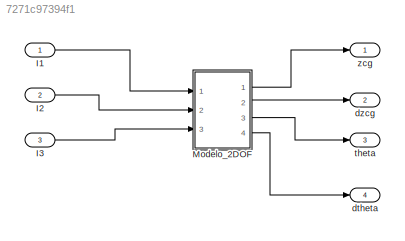
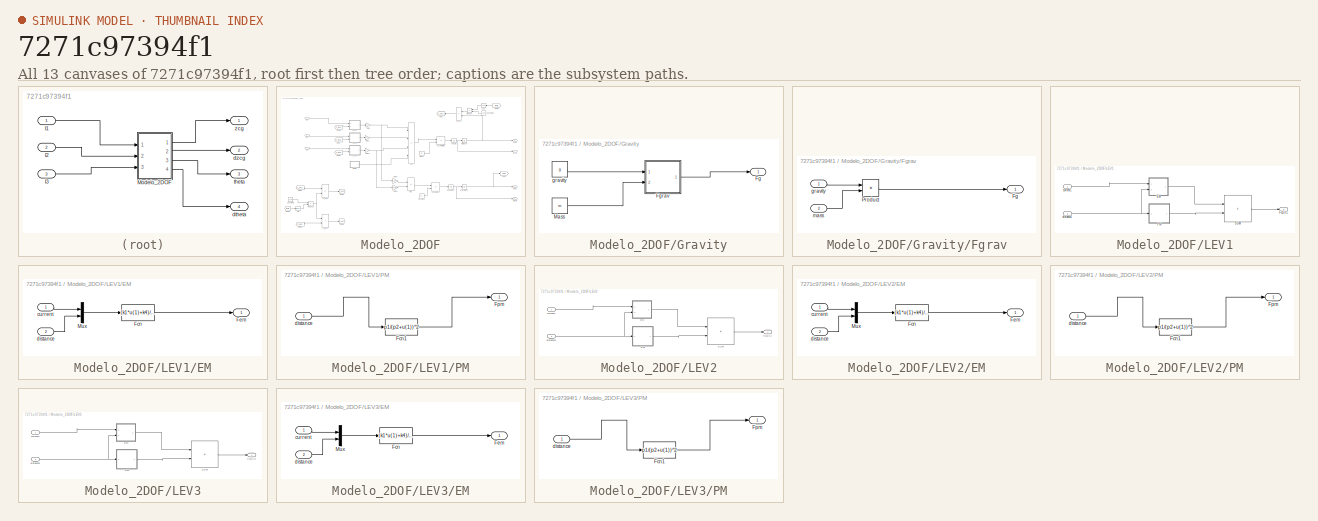
[diagram: thumbnail index - all 13 canvases of the model, root first then tree order]
MODEL slx_7271c97394f1
KIND model
CONFIG AbsTol = auto
CONFIG EnableMultiTasking = off
CONFIG FixedStep = T
CONFIG MaxStep = auto
CONFIG MinStep = auto
CONFIG RelTol = 1e-3
CONFIG SampleTimeConstraint = Unconstrained
CONFIG SolverName = VariableStepAuto
CONFIG StartTime = 0.0
CONFIG StopTime = 5
BLOCK [Inport] I1
BLOCK [Inport] I2
  Port = 2
BLOCK [Inport] I3
  Port = 3
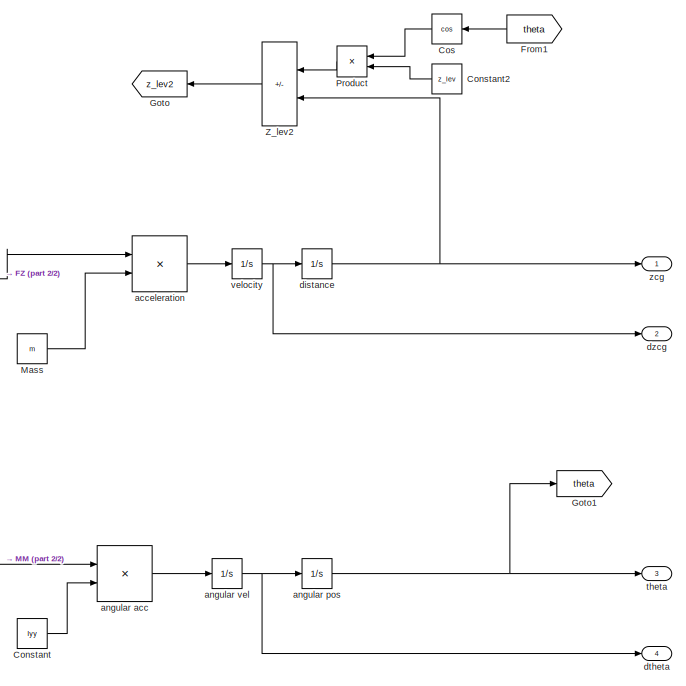
[diagram: Modelo_2DOF - part 1/2, right side, full height]
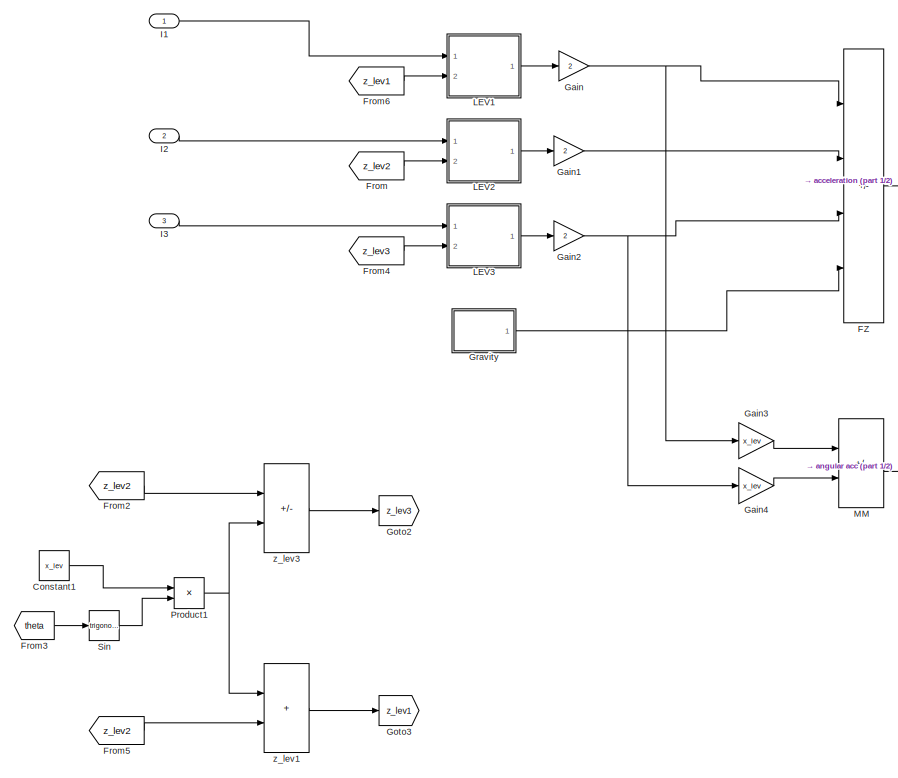
[diagram: Modelo_2DOF - part 2/2, left side, full height]
BLOCK [SubSystem] Modelo_2DOF
  Ports = [3, 4]
  RequestExecContextInheritance = off
BLOCK [Constant] Modelo_2DOF/Constant
  Value = Iyy
BLOCK [Constant] Modelo_2DOF/Constant1
  Value = x_lev
BLOCK [Constant] Modelo_2DOF/Constant2
  NameLocation = top
  Value = z_lev
BLOCK [Trigonometry] Modelo_2DOF/Cos
  NameLocation = top
  Operator = cos
  Ports = [1, 1]
BLOCK [Sum] Modelo_2DOF/FZ
  IconShape = rectangular
  Inputs = ---+
  Ports = [4, 1]
BLOCK [From] Modelo_2DOF/From
  GotoTag = z_lev2
BLOCK [From] Modelo_2DOF/From1
  GotoTag = theta
  NameLocation = top
BLOCK [From] Modelo_2DOF/From2
  GotoTag = z_lev2
BLOCK [From] Modelo_2DOF/From3
  GotoTag = theta
BLOCK [From] Modelo_2DOF/From4
  GotoTag = z_lev3
BLOCK [From] Modelo_2DOF/From5
  GotoTag = z_lev2
BLOCK [From] Modelo_2DOF/From6
  GotoTag = z_lev1
BLOCK [Gain] Modelo_2DOF/Gain
  Gain = 2
BLOCK [Gain] Modelo_2DOF/Gain1
  Gain = 2
BLOCK [Gain] Modelo_2DOF/Gain2
  Gain = 2
BLOCK [Gain] Modelo_2DOF/Gain3
  Gain = x_lev
BLOCK [Gain] Modelo_2DOF/Gain4
  Gain = x_lev
BLOCK [Goto] Modelo_2DOF/Goto
  GotoTag = z_lev2
  NameLocation = top
BLOCK [Goto] Modelo_2DOF/Goto1
  GotoTag = theta
BLOCK [Goto] Modelo_2DOF/Goto2
  GotoTag = z_lev3
BLOCK [Goto] Modelo_2DOF/Goto3
  GotoTag = z_lev1
BLOCK [SubSystem] Modelo_2DOF/Gravity
  Ports = [0, 1]
  RequestExecContextInheritance = off
BLOCK [Outport] Modelo_2DOF/Gravity/Fg
BLOCK [SubSystem] Modelo_2DOF/Gravity/Fgrav
  Ports = [2, 1]
  RequestExecContextInheritance = off
BLOCK [Outport] Modelo_2DOF/Gravity/Fgrav/Fg
  VectorParamsAs1DForOutWhenUnconnected = off
BLOCK [Product] Modelo_2DOF/Gravity/Fgrav/Product
  Ports = [2, 1]
BLOCK [Inport] Modelo_2DOF/Gravity/Fgrav/gravity
BLOCK [Inport] Modelo_2DOF/Gravity/Fgrav/mass
  Port = 2
BLOCK [Constant] Modelo_2DOF/Gravity/Mass
  Value = m
BLOCK [Constant] Modelo_2DOF/Gravity/gravity
  Value = g
BLOCK [Inport] Modelo_2DOF/I1
BLOCK [Inport] Modelo_2DOF/I2
  Port = 2
BLOCK [Inport] Modelo_2DOF/I3
  Port = 3
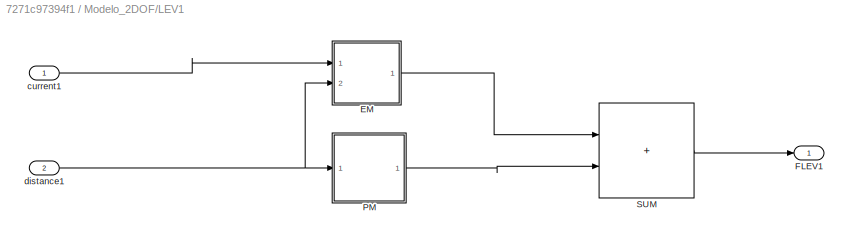
BLOCK [SubSystem] Modelo_2DOF/LEV1
  Ports = [2, 1]
  RequestExecContextInheritance = off
BLOCK [SubSystem] Modelo_2DOF/LEV1/EM
  Ports = [2, 1]
  RequestExecContextInheritance = off
BLOCK [Fcn] Modelo_2DOF/LEV1/EM/Fcn
  Expr = (k1*u(1)+k4)/(u(2)*k3-k2)^2
BLOCK [Outport] Modelo_2DOF/LEV1/EM/Fem
  VectorParamsAs1DForOutWhenUnconnected = off
BLOCK [Mux] Modelo_2DOF/LEV1/EM/Mux
  DisplayOption = bar
  Inputs = 2
  Ports = [2, 1]
BLOCK [Inport] Modelo_2DOF/LEV1/EM/current
BLOCK [Inport] Modelo_2DOF/LEV1/EM/distance
  Port = 2
BLOCK [Outport] Modelo_2DOF/LEV1/FLEV1
  VectorParamsAs1DForOutWhenUnconnected = off
BLOCK [SubSystem] Modelo_2DOF/LEV1/PM
  Ports = [1, 1]
  RequestExecContextInheritance = off
BLOCK [Fcn] Modelo_2DOF/LEV1/PM/Fcn1
  Expr = p1/(p2+u(1))^2
BLOCK [Outport] Modelo_2DOF/LEV1/PM/Fpm
  VectorParamsAs1DForOutWhenUnconnected = off
BLOCK [Inport] Modelo_2DOF/LEV1/PM/distance
BLOCK [Sum] Modelo_2DOF/LEV1/SUM
  IconShape = rectangular
  Ports = [2, 1]
BLOCK [Inport] Modelo_2DOF/LEV1/current1
BLOCK [Inport] Modelo_2DOF/LEV1/distance1
  Port = 2
BLOCK [SubSystem] Modelo_2DOF/LEV2
  Ports = [2, 1]
  RequestExecContextInheritance = off
BLOCK [SubSystem] Modelo_2DOF/LEV2/EM
  Ports = [2, 1]
  RequestExecContextInheritance = off
BLOCK [Fcn] Modelo_2DOF/LEV2/EM/Fcn
  Expr = (k1*u(1)+k4)/(u(2)*k3-k2)^2
BLOCK [Outport] Modelo_2DOF/LEV2/EM/Fem
  VectorParamsAs1DForOutWhenUnconnected = off
BLOCK [Mux] Modelo_2DOF/LEV2/EM/Mux
  DisplayOption = bar
  Inputs = 2
  Ports = [2, 1]
BLOCK [Inport] Modelo_2DOF/LEV2/EM/current
BLOCK [Inport] Modelo_2DOF/LEV2/EM/distance
  Port = 2
BLOCK [Outport] Modelo_2DOF/LEV2/FLEV2
  VectorParamsAs1DForOutWhenUnconnected = off
BLOCK [SubSystem] Modelo_2DOF/LEV2/PM
  Ports = [1, 1]
  RequestExecContextInheritance = off
BLOCK [Fcn] Modelo_2DOF/LEV2/PM/Fcn1
  Expr = p1/(p2+u(1))^2
BLOCK [Outport] Modelo_2DOF/LEV2/PM/Fpm
  VectorParamsAs1DForOutWhenUnconnected = off
BLOCK [Inport] Modelo_2DOF/LEV2/PM/distance
BLOCK [Sum] Modelo_2DOF/LEV2/SUM
  IconShape = rectangular
  Ports = [2, 1]
BLOCK [Inport] Modelo_2DOF/LEV2/current2
BLOCK [Inport] Modelo_2DOF/LEV2/distance2
  Port = 2
BLOCK [SubSystem] Modelo_2DOF/LEV3
  Ports = [2, 1]
  RequestExecContextInheritance = off
BLOCK [SubSystem] Modelo_2DOF/LEV3/EM
  Ports = [2, 1]
  RequestExecContextInheritance = off
BLOCK [Fcn] Modelo_2DOF/LEV3/EM/Fcn
  Expr = (k1*u(1)+k4)/(u(2)*k3-k2)^2
BLOCK [Outport] Modelo_2DOF/LEV3/EM/Fem
  VectorParamsAs1DForOutWhenUnconnected = off
BLOCK [Mux] Modelo_2DOF/LEV3/EM/Mux
  DisplayOption = bar
  Inputs = 2
  Ports = [2, 1]
BLOCK [Inport] Modelo_2DOF/LEV3/EM/current
BLOCK [Inport] Modelo_2DOF/LEV3/EM/distance
  Port = 2
BLOCK [Outport] Modelo_2DOF/LEV3/FLEV3
  VectorParamsAs1DForOutWhenUnconnected = off
BLOCK [SubSystem] Modelo_2DOF/LEV3/PM
  Ports = [1, 1]
  RequestExecContextInheritance = off
BLOCK [Fcn] Modelo_2DOF/LEV3/PM/Fcn1
  Expr = p1/(p2+u(1))^2
BLOCK [Outport] Modelo_2DOF/LEV3/PM/Fpm
  VectorParamsAs1DForOutWhenUnconnected = off
BLOCK [Inport] Modelo_2DOF/LEV3/PM/distance
BLOCK [Sum] Modelo_2DOF/LEV3/SUM
  IconShape = rectangular
  Ports = [2, 1]
BLOCK [Inport] Modelo_2DOF/LEV3/current3
BLOCK [Inport] Modelo_2DOF/LEV3/distance3
  Port = 2
BLOCK [Sum] Modelo_2DOF/MM
  IconShape = rectangular
  Inputs = +-
  Ports = [2, 1]
BLOCK [Constant] Modelo_2DOF/Mass
  Value = m
BLOCK [Product] Modelo_2DOF/Product
  NameLocation = top
  Ports = [2, 1]
BLOCK [Product] Modelo_2DOF/Product1
  Ports = [2, 1]
BLOCK [Trigonometry] Modelo_2DOF/Sin
  Ports = [1, 1]
BLOCK [Sum] Modelo_2DOF/Z_lev2
  IconShape = rectangular
  Inputs = -+
  NameLocation = top
  Ports = [2, 1]
BLOCK [Product] Modelo_2DOF/acceleration
  Inputs = */
  Ports = [2, 1]
BLOCK [Product] Modelo_2DOF/angular acc
  Inputs = */
  Ports = [2, 1]
BLOCK [Integrator] Modelo_2DOF/angular pos
  InitialCondition = theta0
  Ports = [1, 1]
BLOCK [Integrator] Modelo_2DOF/angular vel
  Ports = [1, 1]
BLOCK [Integrator] Modelo_2DOF/distance
  InitialCondition = z_ini
  Ports = [1, 1]
BLOCK [Outport] Modelo_2DOF/dtheta
  Port = 4
  VectorParamsAs1DForOutWhenUnconnected = off
BLOCK [Outport] Modelo_2DOF/dzcg
  Port = 2
  VectorParamsAs1DForOutWhenUnconnected = off
BLOCK [Outport] Modelo_2DOF/theta
  Port = 3
  VectorParamsAs1DForOutWhenUnconnected = off
BLOCK [Integrator] Modelo_2DOF/velocity
  Ports = [1, 1]
BLOCK [Sum] Modelo_2DOF/z_lev1
  IconShape = rectangular
  Ports = [2, 1]
BLOCK [Sum] Modelo_2DOF/z_lev3
  IconShape = rectangular
  Inputs = +-
  Ports = [2, 1]
BLOCK [Outport] Modelo_2DOF/zcg
  VectorParamsAs1DForOutWhenUnconnected = off
BLOCK [Outport] dtheta
  Port = 4
  VectorParamsAs1DForOutWhenUnconnected = off
BLOCK [Outport] dzcg
  Port = 2
  VectorParamsAs1DForOutWhenUnconnected = off
BLOCK [Outport] theta
  Port = 3
  VectorParamsAs1DForOutWhenUnconnected = off
BLOCK [Outport] zcg
  VectorParamsAs1DForOutWhenUnconnected = off
LINE I1:1 -> Modelo_2DOF:1
LINE I2:1 -> Modelo_2DOF:2
LINE I3:1 -> Modelo_2DOF:3
LINE Modelo_2DOF/Constant1:1 -> Modelo_2DOF/Product1:1
LINE Modelo_2DOF/Constant2:1 -> Modelo_2DOF/Product:2
LINE Modelo_2DOF/Constant:1 -> Modelo_2DOF/angular acc:2
LINE Modelo_2DOF/Cos:1 -> Modelo_2DOF/Product:1
LINE Modelo_2DOF/FZ:1 -> Modelo_2DOF/acceleration:1
LINE Modelo_2DOF/From1:1 -> Modelo_2DOF/Cos:1
LINE Modelo_2DOF/From2:1 -> Modelo_2DOF/z_lev3:1
LINE Modelo_2DOF/From3:1 -> Modelo_2DOF/Sin:1
LINE Modelo_2DOF/From4:1 -> Modelo_2DOF/LEV3:2
LINE Modelo_2DOF/From5:1 -> Modelo_2DOF/z_lev1:2
LINE Modelo_2DOF/From6:1 -> Modelo_2DOF/LEV1:2
LINE Modelo_2DOF/From:1 -> Modelo_2DOF/LEV2:2
LINE Modelo_2DOF/Gain1:1 -> Modelo_2DOF/FZ:2
NET Modelo_2DOF/Gain2:1 -> Modelo_2DOF/FZ:3, Modelo_2DOF/Gain4:1
LINE Modelo_2DOF/Gain3:1 -> Modelo_2DOF/MM:1
LINE Modelo_2DOF/Gain4:1 -> Modelo_2DOF/MM:2
NET Modelo_2DOF/Gain:1 -> Modelo_2DOF/FZ:1, Modelo_2DOF/Gain3:1
LINE Modelo_2DOF/Gravity/Fgrav/Product:1 -> Modelo_2DOF/Gravity/Fgrav/Fg:1
LINE Modelo_2DOF/Gravity/Fgrav/gravity:1 -> Modelo_2DOF/Gravity/Fgrav/Product:1
LINE Modelo_2DOF/Gravity/Fgrav/mass:1 -> Modelo_2DOF/Gravity/Fgrav/Product:2
LINE Modelo_2DOF/Gravity/Fgrav:1 -> Modelo_2DOF/Gravity/Fg:1
LINE Modelo_2DOF/Gravity/Mass:1 -> Modelo_2DOF/Gravity/Fgrav:2
LINE Modelo_2DOF/Gravity/gravity:1 -> Modelo_2DOF/Gravity/Fgrav:1
LINE Modelo_2DOF/Gravity:1 -> Modelo_2DOF/FZ:4
LINE Modelo_2DOF/I1:1 -> Modelo_2DOF/LEV1:1
LINE Modelo_2DOF/I2:1 -> Modelo_2DOF/LEV2:1
LINE Modelo_2DOF/I3:1 -> Modelo_2DOF/LEV3:1
LINE Modelo_2DOF/LEV1/EM/Fcn:1 -> Modelo_2DOF/LEV1/EM/Fem:1
LINE Modelo_2DOF/LEV1/EM/Mux:1 -> Modelo_2DOF/LEV1/EM/Fcn:1
LINE Modelo_2DOF/LEV1/EM/current:1 -> Modelo_2DOF/LEV1/EM/Mux:1
LINE Modelo_2DOF/LEV1/EM/distance:1 -> Modelo_2DOF/LEV1/EM/Mux:2
LINE Modelo_2DOF/LEV1/EM:1 -> Modelo_2DOF/LEV1/SUM:1
LINE Modelo_2DOF/LEV1/PM/Fcn1:1 -> Modelo_2DOF/LEV1/PM/Fpm:1
LINE Modelo_2DOF/LEV1/PM/distance:1 -> Modelo_2DOF/LEV1/PM/Fcn1:1
LINE Modelo_2DOF/LEV1/PM:1 -> Modelo_2DOF/LEV1/SUM:2
LINE Modelo_2DOF/LEV1/SUM:1 -> Modelo_2DOF/LEV1/FLEV1:1
LINE Modelo_2DOF/LEV1/current1:1 -> Modelo_2DOF/LEV1/EM:1
NET Modelo_2DOF/LEV1/distance1:1 -> Modelo_2DOF/LEV1/EM:2, Modelo_2DOF/LEV1/PM:1
LINE Modelo_2DOF/LEV1:1 -> Modelo_2DOF/Gain:1
LINE Modelo_2DOF/LEV2/EM/Fcn:1 -> Modelo_2DOF/LEV2/EM/Fem:1
LINE Modelo_2DOF/LEV2/EM/Mux:1 -> Modelo_2DOF/LEV2/EM/Fcn:1
LINE Modelo_2DOF/LEV2/EM/current:1 -> Modelo_2DOF/LEV2/EM/Mux:1
LINE Modelo_2DOF/LEV2/EM/distance:1 -> Modelo_2DOF/LEV2/EM/Mux:2
LINE Modelo_2DOF/LEV2/EM:1 -> Modelo_2DOF/LEV2/SUM:1
LINE Modelo_2DOF/LEV2/PM/Fcn1:1 -> Modelo_2DOF/LEV2/PM/Fpm:1
LINE Modelo_2DOF/LEV2/PM/distance:1 -> Modelo_2DOF/LEV2/PM/Fcn1:1
LINE Modelo_2DOF/LEV2/PM:1 -> Modelo_2DOF/LEV2/SUM:2
LINE Modelo_2DOF/LEV2/SUM:1 -> Modelo_2DOF/LEV2/FLEV2:1
LINE Modelo_2DOF/LEV2/current2:1 -> Modelo_2DOF/LEV2/EM:1
NET Modelo_2DOF/LEV2/distance2:1 -> Modelo_2DOF/LEV2/EM:2, Modelo_2DOF/LEV2/PM:1
LINE Modelo_2DOF/LEV2:1 -> Modelo_2DOF/Gain1:1
LINE Modelo_2DOF/LEV3/EM/Fcn:1 -> Modelo_2DOF/LEV3/EM/Fem:1
LINE Modelo_2DOF/LEV3/EM/Mux:1 -> Modelo_2DOF/LEV3/EM/Fcn:1
LINE Modelo_2DOF/LEV3/EM/current:1 -> Modelo_2DOF/LEV3/EM/Mux:1
LINE Modelo_2DOF/LEV3/EM/distance:1 -> Modelo_2DOF/LEV3/EM/Mux:2
LINE Modelo_2DOF/LEV3/EM:1 -> Modelo_2DOF/LEV3/SUM:1
LINE Modelo_2DOF/LEV3/PM/Fcn1:1 -> Modelo_2DOF/LEV3/PM/Fpm:1
LINE Modelo_2DOF/LEV3/PM/distance:1 -> Modelo_2DOF/LEV3/PM/Fcn1:1
LINE Modelo_2DOF/LEV3/PM:1 -> Modelo_2DOF/LEV3/SUM:2
LINE Modelo_2DOF/LEV3/SUM:1 -> Modelo_2DOF/LEV3/FLEV3:1
LINE Modelo_2DOF/LEV3/current3:1 -> Modelo_2DOF/LEV3/EM:1
NET Modelo_2DOF/LEV3/distance3:1 -> Modelo_2DOF/LEV3/EM:2, Modelo_2DOF/LEV3/PM:1
LINE Modelo_2DOF/LEV3:1 -> Modelo_2DOF/Gain2:1
LINE Modelo_2DOF/MM:1 -> Modelo_2DOF/angular acc:1
LINE Modelo_2DOF/Mass:1 -> Modelo_2DOF/acceleration:2
NET Modelo_2DOF/Product1:1 -> Modelo_2DOF/z_lev1:1, Modelo_2DOF/z_lev3:2
LINE Modelo_2DOF/Product:1 -> Modelo_2DOF/Z_lev2:1
LINE Modelo_2DOF/Sin:1 -> Modelo_2DOF/Product1:2
LINE Modelo_2DOF/Z_lev2:1 -> Modelo_2DOF/Goto:1
LINE Modelo_2DOF/acceleration:1 -> Modelo_2DOF/velocity:1
LINE Modelo_2DOF/angular acc:1 -> Modelo_2DOF/angular vel:1
NET Modelo_2DOF/angular pos:1 -> Modelo_2DOF/Goto1:1, Modelo_2DOF/theta:1
NET Modelo_2DOF/angular vel:1 -> Modelo_2DOF/angular pos:1, Modelo_2DOF/dtheta:1
NET Modelo_2DOF/distance:1 -> Modelo_2DOF/Z_lev2:2, Modelo_2DOF/zcg:1
NET Modelo_2DOF/velocity:1 -> Modelo_2DOF/distance:1, Modelo_2DOF/dzcg:1
LINE Modelo_2DOF/z_lev1:1 -> Modelo_2DOF/Goto3:1
LINE Modelo_2DOF/z_lev3:1 -> Modelo_2DOF/Goto2:1
LINE Modelo_2DOF:1 -> zcg:1
LINE Modelo_2DOF:2 -> dzcg:1
LINE Modelo_2DOF:3 -> theta:1
LINE Modelo_2DOF:4 -> dtheta:1
note: NET lines group one-source signal fan-out (src -> all destinations, sorted); 1:1 wires keep LINE
